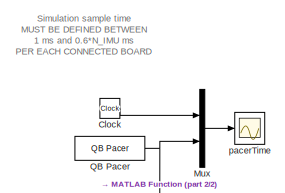
[diagram: root canvas - part 1/2, top left region]
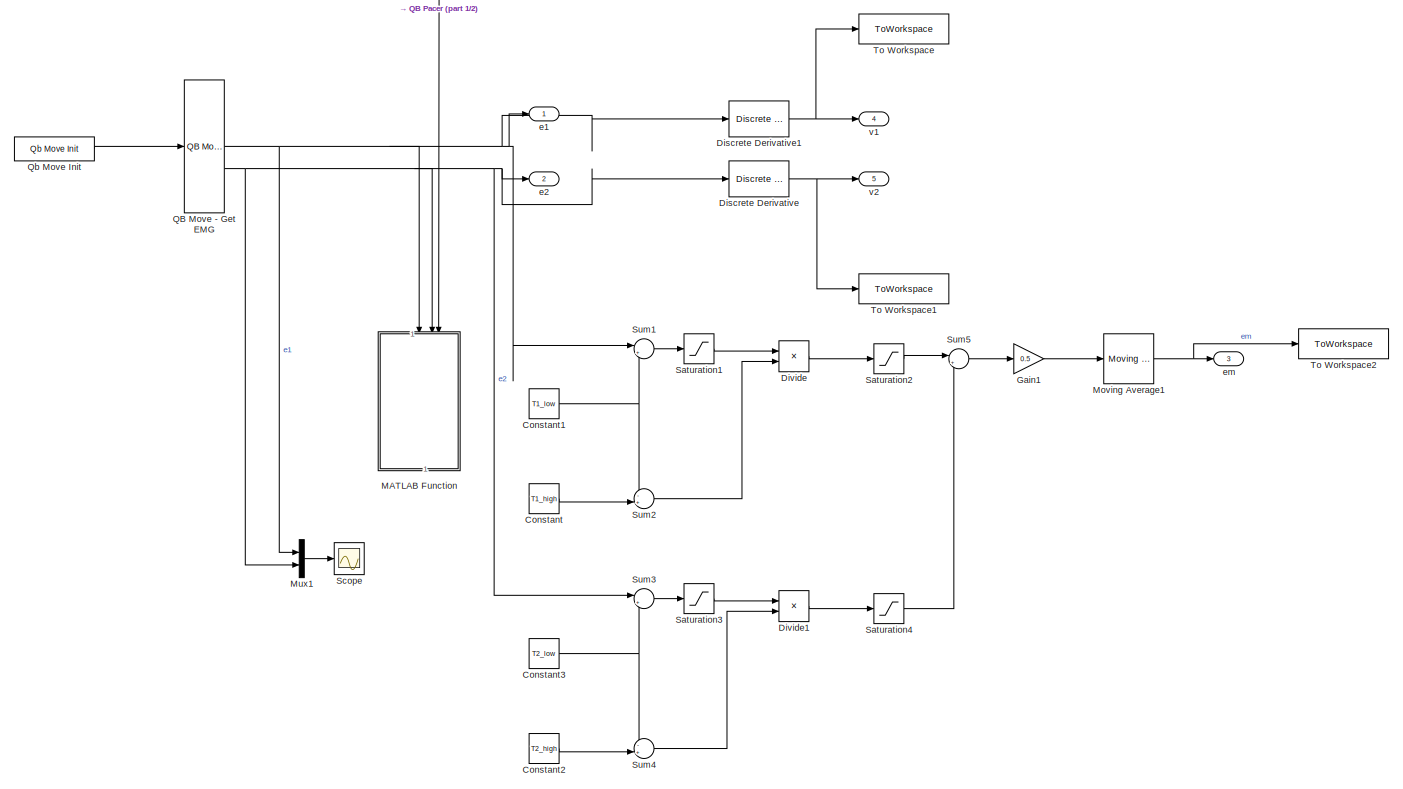
[diagram: root canvas - part 2/2, most of the canvas]
MODEL slx_ab5e5e717867
KIND model
CONFIG AbsTol = auto
CONFIG EnableMultiTasking = off
CONFIG FixedStep = 0.01
CONFIG MaxStep = auto
CONFIG MinStep = auto
CONFIG RelTol = 1e-3
CONFIG SampleTimeConstraint = Unconstrained
CONFIG SolverName = ode1
CONFIG StartTime = 0.0
CONFIG StopTime = 20
BLOCK [Clock] Clock
BLOCK [Constant] Constant
  Value = T1_high
BLOCK [Constant] Constant1
  Value = T1_low
BLOCK [Constant] Constant2
  Value = T2_high
BLOCK [Constant] Constant3
  Value = T2_low
BLOCK [Reference] Discrete Derivative  REF=simulink/Discrete/Discrete Derivative
  SourceBlock = simulink/Discrete/Discrete Derivative
  SourceType = Discrete Derivative
BLOCK [Reference] Discrete Derivative1  REF=simulink/Discrete/Discrete Derivative
  SourceBlock = simulink/Discrete/Discrete Derivative
  SourceType = Discrete Derivative
BLOCK [Product] Divide
  Inputs = */
BLOCK [Product] Divide1
  Inputs = */
BLOCK [Gain] Gain1
  Gain = 0.5
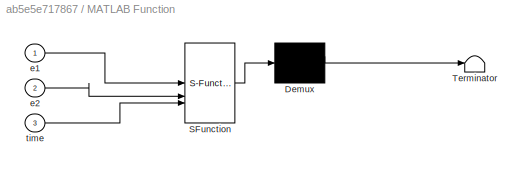
BLOCK [SubSystem] MATLAB Function
  ErrorFcn = Stateflow.Translate.translate
  NameLocation = left
  PermitHierarchicalResolution = ExplicitOnly
  SFBlockType = MATLAB Function
  TreatAsAtomicUnit = on
BLOCK [Demux] MATLAB Function/ Demux 
  Outputs = 1
BLOCK [S-Function] MATLAB Function/ SFunction 
  EnableBusSupport = on
  FunctionName = sf_sfun
  PortCounts = [3 1]
  SFcnIsStateOwnerBlock = off
  SFunctionDeploymentMode = off
  Tag = Stateflow S-Function 2
BLOCK [Terminator] MATLAB Function/ Terminator 
BLOCK [Inport] MATLAB Function/e1
BLOCK [Inport] MATLAB Function/e2
  Port = 2
BLOCK [Inport] MATLAB Function/time
  Port = 3
BLOCK [Reference] Moving Average1  REF=dspstat3/Moving
Average
  SourceBlock = dspstat3/Moving\nAverage
  SourceType = dsp.simulink.MovingAverage
BLOCK [Mux] Mux
  DisplayOption = bar
  Inputs = 2
BLOCK [Mux] Mux1
  DisplayOption = bar
  Inputs = 2
BLOCK [Reference] QB Move - Get EMG  REF=qbmove_library/QB Move - Get EMG
  SourceBlock = qbmove_library/QB Move - Get EMG
  SourceProductName = Qb Move Library
  SourceType = qb move
BLOCK [Reference] QB Pacer  REF=QB_pacer_lib/QB Pacer
  SourceBlock = QB_pacer_lib/QB Pacer
  SourceProductName = QB Pacer
  SourceType = RealTime_Pacer
BLOCK [Reference] Qb Move Init  REF=qbmove_library/Qb Move Init
  NameLocation = top
  SourceBlock = qbmove_library/Qb Move Init
  SourceProductName = Qb Move Library
  SourceType = qb Init - ISS
BLOCK [Saturate] Saturation1
  LowerLimit = 0
  UpperLimit = 1024
BLOCK [Saturate] Saturation2
  LowerLimit = 0
  UpperLimit = 1
BLOCK [Saturate] Saturation3
  LowerLimit = 0
  UpperLimit = 1024
BLOCK [Saturate] Saturation4
  LowerLimit = 0
  UpperLimit = 1
BLOCK [Scope] Scope
  Floating = off
  NumInputPorts = 1
  ScopeSpecificationString = Simulink.scopes.TimeScopeBlockCfg('CurrentConfiguration', extmgr.ConfigurationSet(extmgr.Configuration('Core','General UI',true),extmgr.Configuration('Core','Source UI',true),extmgr.Configuration('Sources','WiredSimulink',true,'DataLoggingVariableName','ScopeData1'),extmgr.Configuration('Visuals','Time Domain',true,'SerializedDisplays',{struct('MinYLimReal','-17.125','MaxYLimReal','154.125','YLabe...<+1462ch>
BLOCK [Sum] Sum1
  Inputs = |+-
BLOCK [Sum] Sum2
  Inputs = -+|
BLOCK [Sum] Sum3
  Inputs = |+-
BLOCK [Sum] Sum4
  Inputs = -+|
BLOCK [Sum] Sum5
  Inputs = |++
BLOCK [ToWorkspace] To Workspace
  FixptAsFi = on
  MaxDataPoints = inf
  SampleTime = -1
  SaveFormat = Timeseries
  VariableName = v1
BLOCK [ToWorkspace] To Workspace1
  FixptAsFi = on
  MaxDataPoints = inf
  SampleTime = -1
  SaveFormat = Timeseries
  VariableName = v2
BLOCK [ToWorkspace] To Workspace2
  FixptAsFi = on
  MaxDataPoints = inf
  SampleTime = -1
  SaveFormat = Timeseries
  VariableName = em
BLOCK [Outport] e1
  SignalName = e1
BLOCK [Outport] e2
  Port = 2
  SignalName = e2
BLOCK [Outport] em
  Port = 3
  SignalName = em
BLOCK [Scope] pacerTime
  Floating = off
  NumInputPorts = 1
  ScopeSpecificationString = Simulink.scopes.TimeScopeBlockCfg('CurrentConfiguration', extmgr.ConfigurationSet(extmgr.Configuration('Core','General UI',true),extmgr.Configuration('Core','Source UI',true),extmgr.Configuration('Sources','WiredSimulink',true,'DataLoggingSaveFormat','Array','DataLoggingDecimation','1','DataLoggingDecimateData',true),extmgr.Configuration('Visuals','Time Domain',true,'SerializedDisplays',{struct('M...<+1503ch>
BLOCK [Outport] v1
  Port = 4
  SignalName = v1
BLOCK [Outport] v2
  Port = 5
  SignalName = v2
ANNOTATION (root): Simulation sample time MUST BE DEFINED BETWEEN 1 ms and 0.6*N_IMU ms PER EACH CONNECTED BOARD
LINE Clock:1 -> Mux:1
NET Constant1:1 -> Sum1:2, Sum2:1
LINE Constant2:1 -> Sum4:2
NET Constant3:1 -> Sum3:2, Sum4:1
LINE Constant:1 -> Sum2:2
NET Discrete Derivative1:1 -> To Workspace:1, v1:1
NET Discrete Derivative:1 -> To Workspace1:1, v2:1
LINE Divide1:1 -> Saturation4:1
LINE Divide:1 -> Saturation2:1
LINE Gain1:1 -> Moving Average1:1
NET Moving Average1:1 -> To Workspace2:1, em:1
LINE Mux1:1 -> Scope:1
LINE Mux:1 -> pacerTime:1
NET QB Move - Get EMG:1 -> Discrete Derivative1:1, MATLAB Function:1, Mux1:1, Sum1:1, e1:1
NET QB Move - Get EMG:2 -> Discrete Derivative:1, MATLAB Function:2, Mux1:2, Sum3:1, e2:1
NET QB Pacer:1 -> MATLAB Function:3, Mux:2
LINE Qb Move Init:1 -> QB Move - Get EMG:1
LINE Saturation1:1 -> Divide:1
LINE Saturation2:1 -> Sum5:1
LINE Saturation3:1 -> Divide1:1
LINE Saturation4:1 -> Sum5:2
LINE Sum1:1 -> Saturation1:1
LINE Sum2:1 -> Divide:2
LINE Sum3:1 -> Saturation3:1
LINE Sum4:1 -> Divide1:2
LINE Sum5:1 -> Gain1:1
note: NET lines group one-source signal fan-out (src -> all destinations, sorted); 1:1 wires keep LINE
CHART MATLAB Function states=1 transitions=1
  STATE_LABEL 'eML_blk_kernel()'
  STATE_LABEL "SCRIPT:\nfunction updateData(e1, e2, time)\n\n    assignin('base', 'e1_Live', e1);\n    assignin('base', 'e2_Live', e2);\n    assignin('base', 'Time_Live', time);\n    \n    % evalin('base', sprintf('Time_Live(end+1) = %f', time))\n    % evalin('base', sprintf('e1_Live(end+1) = %f', e1))\n    % evalin('base', sprintf('e2_Live(end+1) = %f', e2))\n\n\nend"
CHART  states=0 transitions=0
